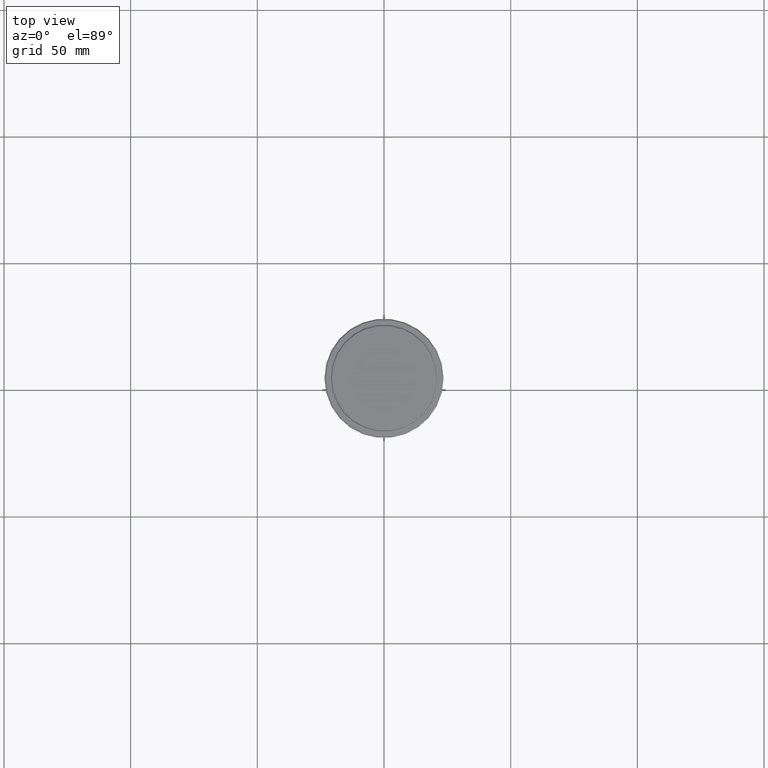
[diagram: clean part render]
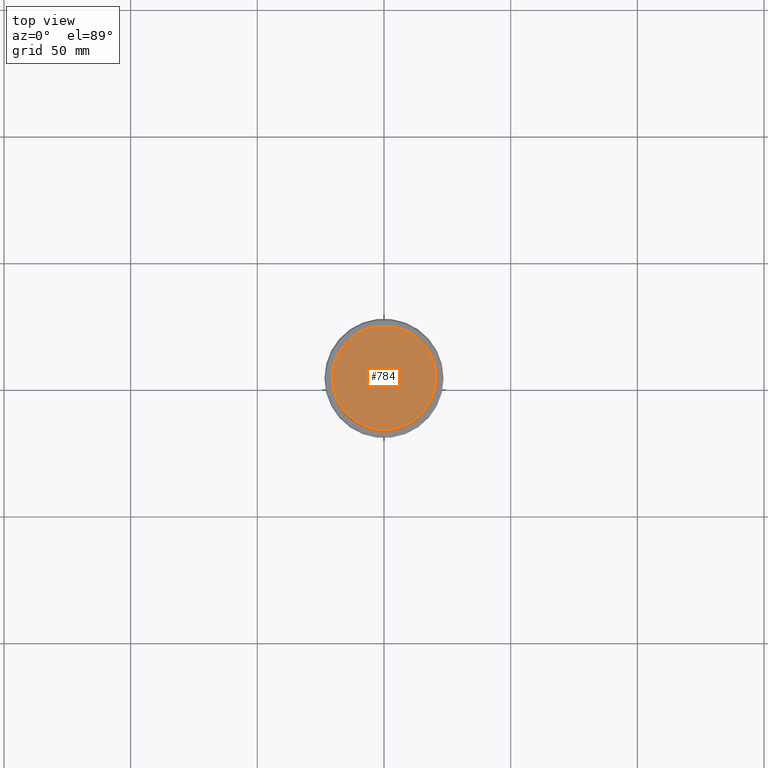
[diagram: same view with one face highlighted and labeled with its STEP entity id]
A machine part, top view. The second image highlights one B-rep face of the part: STEP entity #784.
In plain terms, the highlighted planar face has unit normal (0, -0, 1).
Its self-contained STEP definition (entity closure, byte-faithful):
#6 = DIRECTION ( 'NONE',  ( -0.000000000000000000, -0.000000000000000000, 1.000000000000000000 ) ) ;
#100 = AXIS2_PLACEMENT_3D ( 'NONE', #975, #6, #1215 ) ;
#183 = DIRECTION ( 'NONE',  ( 0.000000000000000000, -0.000000000000000000, 1.000000000000000000 ) ) ;
#221 = CIRCLE ( 'NONE', #868, 20.50000000000001776 ) ;
#297 = PLANE ( 'NONE',  #823 ) ;
#446 = VERTEX_POINT ( 'NONE', #1395 ) ;
#472 = DIRECTION ( 'NONE',  ( -0.000000000000000000, -0.000000000000000000, 1.000000000000000000 ) ) ;
#503 = DIRECTION ( 'NONE',  ( 1.000000000000000000, 0.000000000000000000, 0.000000000000000000 ) ) ;
#572 = EDGE_CURVE ( 'NONE', #446, #694, #221, .T. ) ;
#629 = DIRECTION ( 'NONE',  ( 1.000000000000000000, 0.000000000000000000, 0.000000000000000000 ) ) ;
#633 = ORIENTED_EDGE ( 'NONE', *, *, #826, .T. ) ;
#637 = EDGE_LOOP ( 'NONE', ( #654, #633 ) ) ;
#654 = ORIENTED_EDGE ( 'NONE', *, *, #572, .T. ) ;
#694 = VERTEX_POINT ( 'NONE', #1075 ) ;
#731 = CIRCLE ( 'NONE', #100, 20.50000000000001776 ) ;
#743 = CARTESIAN_POINT ( 'NONE',  ( 0.000000000000000000, 0.000000000000000000, 0.000000000000000000 ) ) ;
#784 = ADVANCED_FACE ( 'NONE', ( #957 ), #297, .T. ) ;
#823 = AXIS2_PLACEMENT_3D ( 'NONE', #743, #183, #629 ) ;
#826 = EDGE_CURVE ( 'NONE', #694, #446, #731, .T. ) ;
#868 = AXIS2_PLACEMENT_3D ( 'NONE', #1027, #472, #503 ) ;
#957 = FACE_OUTER_BOUND ( 'NONE', #637, .T. ) ;
#975 = CARTESIAN_POINT ( 'NONE',  ( 0.000000000000000000, 0.000000000000000000, 0.000000000000000000 ) ) ;
#1027 = CARTESIAN_POINT ( 'NONE',  ( 0.000000000000000000, 0.000000000000000000, 0.000000000000000000 ) ) ;
#1075 = CARTESIAN_POINT ( 'NONE',  ( 20.50000000000001776, 2.541142108230759057E-15, 0.000000000000000000 ) ) ;
#1215 = DIRECTION ( 'NONE',  ( 1.000000000000000000, 0.000000000000000000, 0.000000000000000000 ) ) ;
#1395 = CARTESIAN_POINT ( 'NONE',  ( -20.50000000000001776, 0.000000000000000000, 0.000000000000000000 ) ) ;